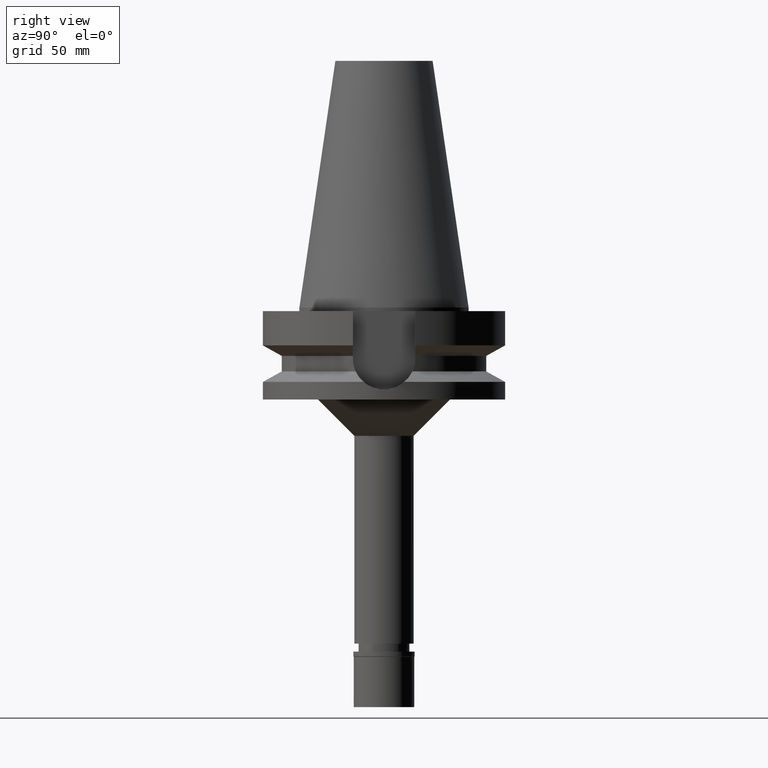
[diagram: clean part render]
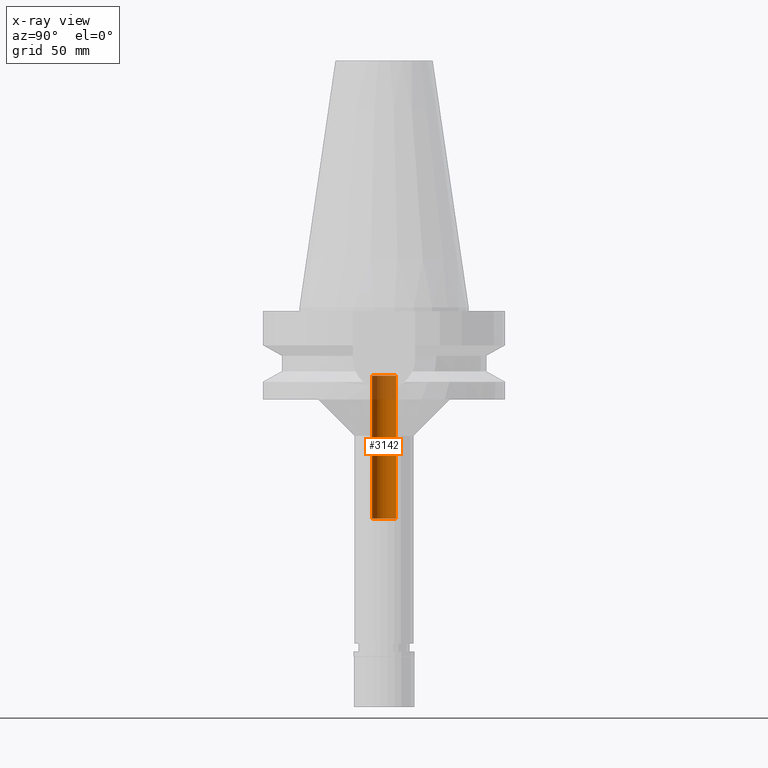
[diagram: x-ray — body ghosted, one internal face saturated and labeled with its STEP entity id]
A machine part, right view, then the same camera in x-ray: the body is ghosted and one INTERNAL B-rep face — a face not visible from any outside direction — is saturated and labeled: STEP entity #3142.
In plain terms, the highlighted cylindrical surface (edge-blend (fillet) strip) has radius 5 mm, axis along (0, 0, -1).
Its self-contained STEP definition (entity closure, byte-faithful):
#21 = ORIENTED_EDGE ( 'NONE', *, *, #495, .T. ) ;
#336 = LINE ( 'NONE', #1271, #3013 ) ;
#495 = EDGE_CURVE ( 'NONE', #1723, #1262, #1091, .T. ) ;
#595 = EDGE_LOOP ( 'NONE', ( #930, #2263, #21, #3041 ) ) ;
#694 = AXIS2_PLACEMENT_3D ( 'NONE', #2627, #3095, #1166 ) ;
#811 = DIRECTION ( 'NONE',  ( 0.0000000000000000000, 0.0000000000000000000, -1.000000000000000000 ) ) ;
#839 = DIRECTION ( 'NONE',  ( 0.0000000000000000000, 0.0000000000000000000, 1.000000000000000000 ) ) ;
#865 = DIRECTION ( 'NONE',  ( 0.0000000000000000000, -1.000000000000000000, 0.0000000000000000000 ) ) ;
#930 = ORIENTED_EDGE ( 'NONE', *, *, #2542, .T. ) ;
#937 = CARTESIAN_POINT ( 'NONE',  ( 0.0000000000000000000, -5.000000000000000000, -28.19999999999999929 ) ) ;
#999 = DIRECTION ( 'NONE',  ( 0.0000000000000000000, -1.000000000000000000, 0.0000000000000000000 ) ) ;
#1091 = CIRCLE ( 'NONE', #2395, 5.000000000000000000 ) ;
#1166 = DIRECTION ( 'NONE',  ( 0.0000000000000000000, 1.000000000000000000, 0.0000000000000000000 ) ) ;
#1239 = CYLINDRICAL_SURFACE ( 'NONE', #2874, 5.000000000000000000 ) ;
#1262 = VERTEX_POINT ( 'NONE', #2613 ) ;
#1271 = CARTESIAN_POINT ( 'NONE',  ( 0.0000000000000000000, -5.000000000000000000, -87.20000000000000284 ) ) ;
#1349 = CARTESIAN_POINT ( 'NONE',  ( 0.0000000000000000000, 2.629194213088999901E-14, -87.20000000000000284 ) ) ;
#1642 = EDGE_CURVE ( 'NONE', #1262, #3099, #1768, .T. ) ;
#1675 = EDGE_CURVE ( 'NONE', #1723, #2905, #336, .T. ) ;
#1723 = VERTEX_POINT ( 'NONE', #2537 ) ;
#1768 = LINE ( 'NONE', #2269, #2897 ) ;
#1936 = DIRECTION ( 'NONE',  ( 0.0000000000000000000, 0.0000000000000000000, -1.000000000000000000 ) ) ;
#2263 = ORIENTED_EDGE ( 'NONE', *, *, #1675, .F. ) ;
#2269 = CARTESIAN_POINT ( 'NONE',  ( 0.0000000000000000000, 5.000000000000000000, -87.20000000000000284 ) ) ;
#2278 = CIRCLE ( 'NONE', #694, 5.000000000000000000 ) ;
#2395 = AXIS2_PLACEMENT_3D ( 'NONE', #1349, #811, #865 ) ;
#2537 = CARTESIAN_POINT ( 'NONE',  ( 0.0000000000000000000, -5.000000000000000000, -87.20000000000000284 ) ) ;
#2542 = EDGE_CURVE ( 'NONE', #3099, #2905, #2278, .T. ) ;
#2613 = CARTESIAN_POINT ( 'NONE',  ( 0.0000000000000000000, 5.000000000000000000, -87.20000000000000284 ) ) ;
#2627 = CARTESIAN_POINT ( 'NONE',  ( 0.0000000000000000000, 2.629194213088999901E-14, -28.19999999999999929 ) ) ;
#2697 = CARTESIAN_POINT ( 'NONE',  ( 0.0000000000000000000, 2.629194213088999901E-14, 114.6899999999999977 ) ) ;
#2874 = AXIS2_PLACEMENT_3D ( 'NONE', #2697, #1936, #999 ) ;
#2897 = VECTOR ( 'NONE', #839, 1000.000000000000000 ) ;
#2905 = VERTEX_POINT ( 'NONE', #937 ) ;
#2921 = CARTESIAN_POINT ( 'NONE',  ( 0.0000000000000000000, 5.000000000000000000, -28.19999999999999929 ) ) ;
#2954 = FACE_OUTER_BOUND ( 'NONE', #595, .T. ) ;
#3010 = DIRECTION ( 'NONE',  ( 0.0000000000000000000, 0.0000000000000000000, 1.000000000000000000 ) ) ;
#3013 = VECTOR ( 'NONE', #3010, 1000.000000000000000 ) ;
#3041 = ORIENTED_EDGE ( 'NONE', *, *, #1642, .T. ) ;
#3095 = DIRECTION ( 'NONE',  ( 0.0000000000000000000, 0.0000000000000000000, 1.000000000000000000 ) ) ;
#3099 = VERTEX_POINT ( 'NONE', #2921 ) ;
#3142 = ADVANCED_FACE ( 'NONE', ( #2954 ), #1239, .F. ) ;